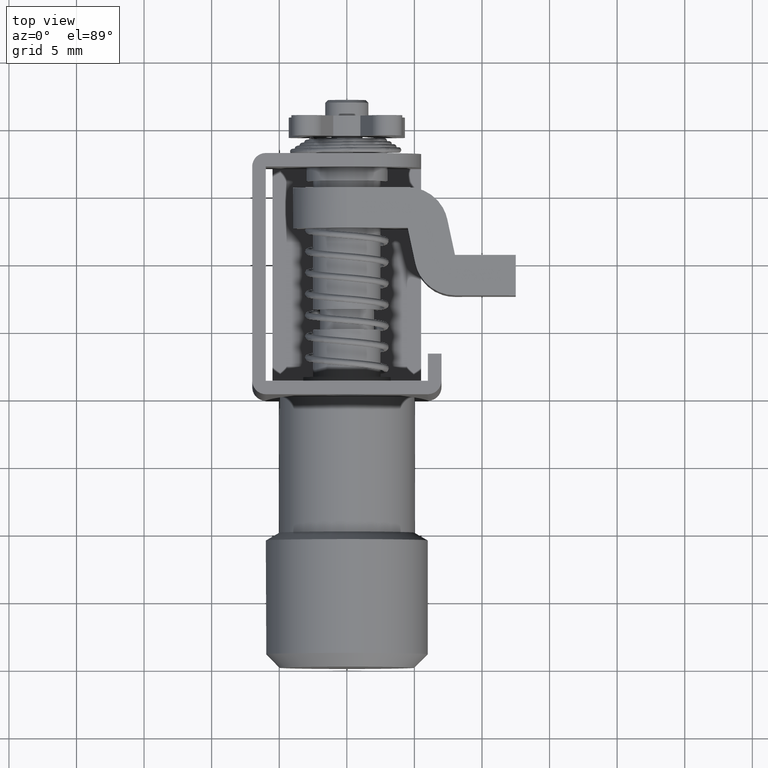
[diagram: clean part render]
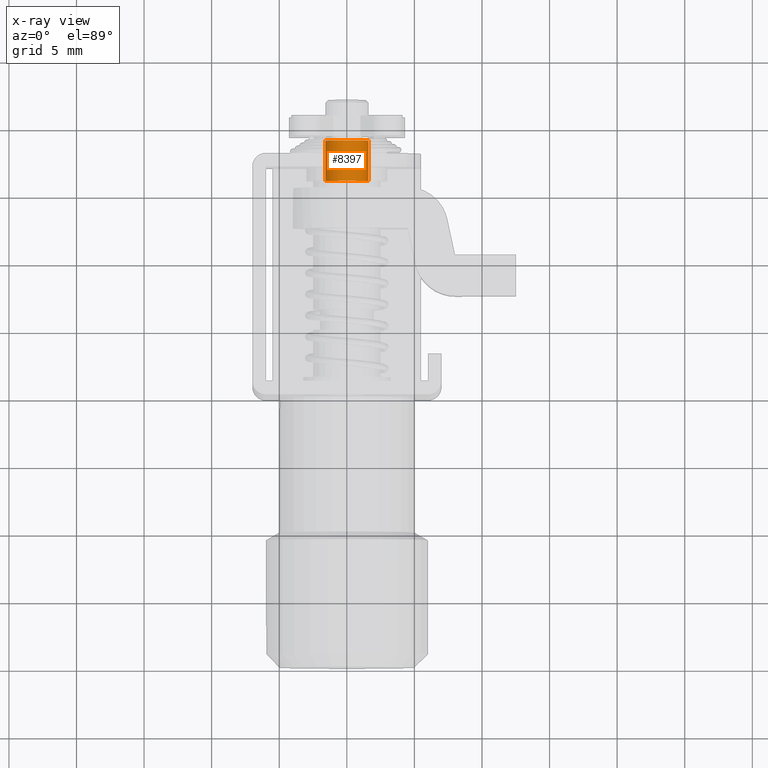
[diagram: x-ray — body ghosted, one internal face saturated and labeled with its STEP entity id]
A machine part, top view, then the same camera in x-ray: the body is ghosted and one INTERNAL B-rep face — a face not visible from any outside direction — is saturated and labeled: STEP entity #8397.
In plain terms, the highlighted face is a freeform B-spline surface patch.
Its self-contained STEP definition (entity closure, byte-faithful):
#8234=CARTESIAN_POINT('',(16.0,1.588815242170815,0.188854775542899));
#8235=VERTEX_POINT('',#8234);
#8253=CARTESIAN_POINT('',(19.0,1.588815242170818,0.188854775542900));
#8254=VERTEX_POINT('',#8253);
#8255=CARTESIAN_POINT('',(19.0,1.588815242170818,0.188854775542900));
#8256=CARTESIAN_POINT('',(16.0,1.588815242170815,0.188854775542899));
#8257=QUASI_UNIFORM_CURVE('',1,(#8255,#8256),.UNSPECIFIED.,.F.,.U.);
#8258=EDGE_CURVE('',#8254,#8235,#8257,.T.);
#8277=CARTESIAN_POINT('',(19.0,-1.597015677468620,-0.097677663358197));
#8278=VERTEX_POINT('',#8277);
#8292=CARTESIAN_POINT('',(16.0,-1.597015677468617,-0.097677663358197));
#8293=VERTEX_POINT('',#8292);
#8294=CARTESIAN_POINT('',(19.0,-1.597015677468620,-0.097677663358197));
#8295=CARTESIAN_POINT('',(16.0,-1.597015677468617,-0.097677663358197));
#8296=QUASI_UNIFORM_CURVE('',1,(#8294,#8295),.UNSPECIFIED.,.F.,.U.);
#8297=EDGE_CURVE('',#8278,#8293,#8296,.T.);
#8315=CARTESIAN_POINT('',(19.074999999999999,-1.597015677474882,-0.097677663255765));
#8316=CARTESIAN_POINT('',(19.075000000000006,-1.694693340730647,1.499338014219117));
#8317=CARTESIAN_POINT('',(19.074999999999999,-0.097677663255765,1.597015677474882));
#8318=CARTESIAN_POINT('',(19.075000000000003,1.410469585343109,1.689257914771933));
#8319=CARTESIAN_POINT('',(19.075000000000006,1.588815242181761,0.188854775450801));
#8320=CARTESIAN_POINT('',(15.923125000000001,-1.597015677474882,-0.097677663255765));
#8321=CARTESIAN_POINT('',(15.923125000000006,-1.694693340730647,1.499338014219117));
#8322=CARTESIAN_POINT('',(15.923125000000001,-0.097677663255765,1.597015677474882));
#8323=CARTESIAN_POINT('',(15.923124999999994,1.410469585343109,1.689257914771933));
#8324=CARTESIAN_POINT('',(15.923125000000008,1.588815242181761,0.188854775450801));
#8332=(BOUNDED_SURFACE()B_SPLINE_SURFACE(2,1,((#8315,#8320),(#8316,#8321),(#8317,#8322),(#8318,#8323),(#8319,#8324)),.UNSPECIFIED.,.F.,.F.,.U.)B_SPLINE_SURFACE_WITH_KNOTS((3,2,3),(2,2),(0.0,1.570796326794897,3.078760800517997),(0.0,3.151875000000004),.UNSPECIFIED.)GEOMETRIC_REPRESENTATION_ITEM()RATIONAL_B_SPLINE_SURFACE(((1.0,1.0),(0.707106781186548,0.707106781186548),(1.0,1.0),(0.718822509939086,0.718822509939086),(0.977505800795127,0.977505800795127)))REPRESENTATION_ITEM('')SURFACE());
#8333=CARTESIAN_POINT('',(16.0,0.0,1.599999999999895));
#8334=VERTEX_POINT('',#8333);
#8335=CARTESIAN_POINT('',(16.0,0.0,1.599999999999895));
#8336=CARTESIAN_POINT('',(16.000000000000004,1.421079241356185,1.599999999999895));
#8337=CARTESIAN_POINT('',(16.0,1.588815242170815,0.188854775542899));
#8345=(BOUNDED_CURVE()B_SPLINE_CURVE(2,(#8335,#8336,#8337),.UNSPECIFIED.,.F.,.U.)B_SPLINE_CURVE_WITH_KNOTS((3,3),(0.0,0.229562473496051),.UNSPECIFIED.)CURVE()GEOMETRIC_REPRESENTATION_ITEM()RATIONAL_B_SPLINE_CURVE((1.0,0.731050832875855,0.956026754149482))REPRESENTATION_ITEM(''));
#8346=EDGE_CURVE('',#8334,#8235,#8345,.T.);
#8347=ORIENTED_EDGE('',*,*,#8346,.F.);
#8348=CARTESIAN_POINT('',(15.999999999999996,-1.597015677468618,-0.097677663358197));
#8349=CARTESIAN_POINT('',(16.0,-1.599999999999895,-0.048884421380458));
#8350=CARTESIAN_POINT('',(16.0,-1.599999999999895,0.0));
#8351=CARTESIAN_POINT('',(16.0,-1.599999999999896,1.599999999999896));
#8352=CARTESIAN_POINT('',(16.0,0.0,1.599999999999895));
#8360=(BOUNDED_CURVE()B_SPLINE_CURVE(2,(#8348,#8349,#8350,#8351,#8352),.UNSPECIFIED.,.F.,.U.)B_SPLINE_CURVE_WITH_KNOTS((3,2,3),(0.739332962219834,0.750000000000000,1.0),.UNSPECIFIED.)CURVE()GEOMETRIC_REPRESENTATION_ITEM()RATIONAL_B_SPLINE_CURVE((0.976072041625764,0.987502787877450,1.0,0.707106781186547,1.0))REPRESENTATION_ITEM(''));
#8361=EDGE_CURVE('',#8293,#8334,#8360,.T.);
#8362=ORIENTED_EDGE('',*,*,#8361,.F.);
#8363=ORIENTED_EDGE('',*,*,#8297,.F.);
#8364=CARTESIAN_POINT('',(19.0,0.0,1.599999999999900));
#8365=VERTEX_POINT('',#8364);
#8366=CARTESIAN_POINT('',(19.000000000000004,-1.597015677468620,-0.097677663358197));
#8367=CARTESIAN_POINT('',(19.0,-1.599999999999901,-0.048884421380458));
#8368=CARTESIAN_POINT('',(19.0,-1.599999999999900,0.0));
#8369=CARTESIAN_POINT('',(18.999999999999993,-1.599999999999901,1.599999999999901));
#8370=CARTESIAN_POINT('',(19.0,0.0,1.599999999999900));
#8378=(BOUNDED_CURVE()B_SPLINE_CURVE(2,(#8366,#8367,#8368,#8369,#8370),.UNSPECIFIED.,.F.,.U.)B_SPLINE_CURVE_WITH_KNOTS((3,2,3),(0.739332962219834,0.750000000000000,1.0),.UNSPECIFIED.)CURVE()GEOMETRIC_REPRESENTATION_ITEM()RATIONAL_B_SPLINE_CURVE((0.976072041625764,0.987502787877450,1.0,0.707106781186548,1.0))REPRESENTATION_ITEM(''));
#8379=EDGE_CURVE('',#8278,#8365,#8378,.T.);
#8380=ORIENTED_EDGE('',*,*,#8379,.T.);
#8381=CARTESIAN_POINT('',(19.0,0.0,1.599999999999900));
#8382=CARTESIAN_POINT('',(18.999999999999996,1.421079241356189,1.599999999999900));
#8383=CARTESIAN_POINT('',(18.999999999999993,1.588815242170818,0.188854775542900));
#8391=(BOUNDED_CURVE()B_SPLINE_CURVE(2,(#8381,#8382,#8383),.UNSPECIFIED.,.F.,.U.)B_SPLINE_CURVE_WITH_KNOTS((3,3),(0.0,0.229562473496051),.UNSPECIFIED.)CURVE()GEOMETRIC_REPRESENTATION_ITEM()RATIONAL_B_SPLINE_CURVE((1.0,0.731050832875855,0.956026754149482))REPRESENTATION_ITEM(''));
#8392=EDGE_CURVE('',#8365,#8254,#8391,.T.);
#8393=ORIENTED_EDGE('',*,*,#8392,.T.);
#8394=ORIENTED_EDGE('',*,*,#8258,.T.);
#8395=EDGE_LOOP('',(#8347,#8362,#8363,#8380,#8393,#8394));
#8396=FACE_OUTER_BOUND('',#8395,.T.);
#8397=ADVANCED_FACE('',(#8396),#8332,.T.);